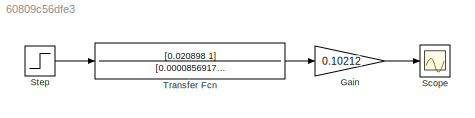
MODEL slx_60809c56dfe3
KIND model
CONFIG AbsTol = auto
CONFIG FixedStep = auto
CONFIG MaxStep = auto
CONFIG MinStep = auto
CONFIG RelTol = 1e-3
CONFIG SampleTimeConstraint = Unconstrained
CONFIG Solver = VariableStepAuto
CONFIG SolverMode = Auto
CONFIG SolverName = VariableStepAuto
CONFIG StartTime = 0.0
CONFIG StopTime = 10.0
BLOCK [Gain] Gain
  Gain = 0.10212
  OutDataTypeStr = Inherit: Inherit via internal rule
  ParamDataTypeStr = Inherit: Inherit via internal rule
  SaturateOnIntegerOverflow = off
BLOCK [Scope] Scope
  Ports = [1]
  ScopeSpecificationString = Simulink.scopes.TimeScopeBlockCfg('CurrentConfiguration', extmgr.ConfigurationSet(extmgr.Configuration('Core','General UI',true),extmgr.Configuration('Core','Source UI',true),extmgr.Configuration('Sources','WiredSimulink',true),extmgr.Configuration('Visuals','Time Domain',true,'SerializedDisplays',{struct('MinYLimReal','69.99584','MaxYLimReal','72.07885','YLabelReal','','MinYLimMag','69.99584','Ma...<+1374ch>
BLOCK [Step] Step
  After = 700
  SampleTime = 0
BLOCK [TransferFcn] Transfer Fcn
  Denominator = [0.000085691708 0.0342021 1]
  Numerator = [0.020898 1]
LINE Gain:1 -> Scope:1
LINE Step:1 -> Transfer Fcn:1
LINE Transfer Fcn:1 -> Gain:1
